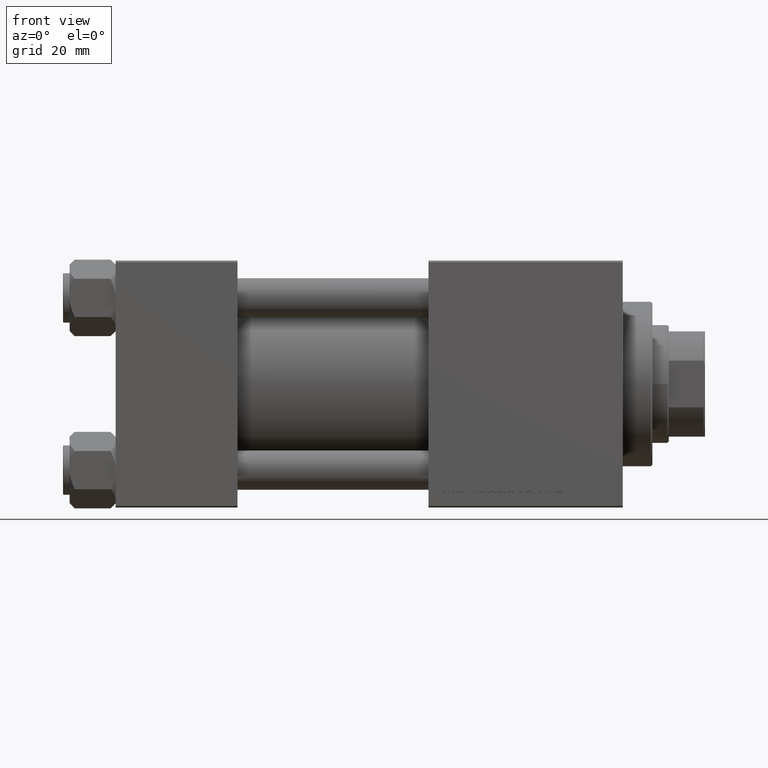
[diagram: clean part render]
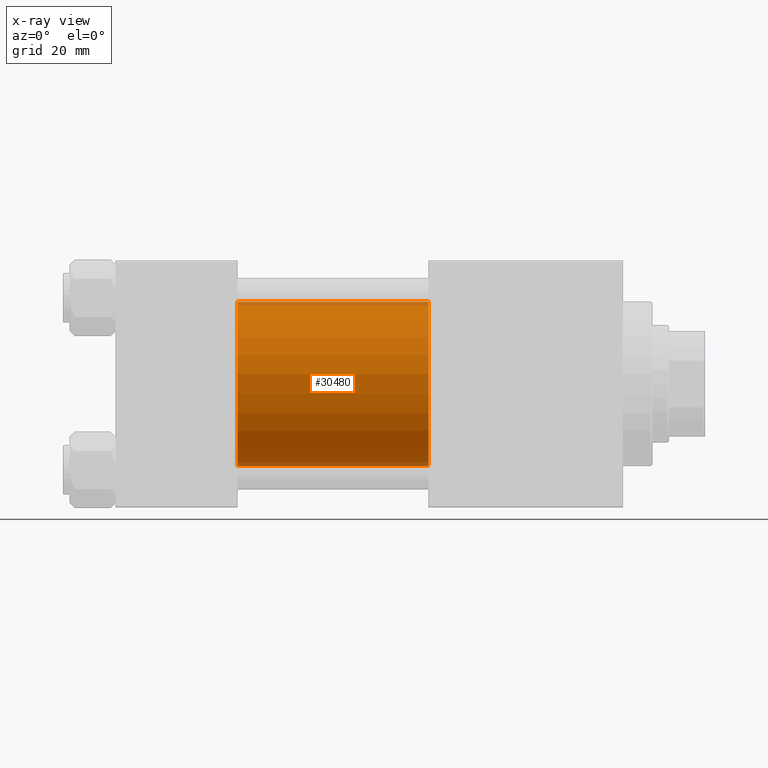
[diagram: x-ray — body ghosted, one internal face saturated and labeled with its STEP entity id]
A machine part, front view, then the same camera in x-ray: the body is ghosted and one INTERNAL B-rep face — a face not visible from any outside direction — is saturated and labeled: STEP entity #30480.
In plain terms, the highlighted cylindrical surface (partial cylindrical patch) has radius 25 mm, axis along (-1, -0, -0).
Its self-contained STEP definition (entity closure, byte-faithful):
#813 = CARTESIAN_POINT ( 'NONE',  ( 95.00000000000000000, -2.602085213965210642E-15, 0.000000000000000000 ) ) ;
#1558 = DIRECTION ( 'NONE',  ( -1.000000000000000000, -0.000000000000000000, -0.000000000000000000 ) ) ;
#1812 = LINE ( 'NONE', #28687, #19314 ) ;
#4354 = EDGE_LOOP ( 'NONE', ( #24250, #27562, #11606, #29359 ) ) ;
#4864 = FACE_OUTER_BOUND ( 'NONE', #4354, .T. ) ;
#5660 = DIRECTION ( 'NONE',  ( 0.000000000000000000, 0.000000000000000000, -1.000000000000000000 ) ) ;
#7914 = DIRECTION ( 'NONE',  ( -1.000000000000000000, -0.000000000000000000, -0.000000000000000000 ) ) ;
#7948 = AXIS2_PLACEMENT_3D ( 'NONE', #813, #7914, #11953 ) ;
#9704 = DIRECTION ( 'NONE',  ( 1.000000000000000000, 0.000000000000000000, 0.000000000000000000 ) ) ;
#10472 = DIRECTION ( 'NONE',  ( -1.000000000000000000, -0.000000000000000000, -0.000000000000000000 ) ) ;
#11606 = ORIENTED_EDGE ( 'NONE', *, *, #27464, .F. ) ;
#11953 = DIRECTION ( 'NONE',  ( 0.000000000000000000, 0.000000000000000000, 1.000000000000000000 ) ) ;
#15947 = AXIS2_PLACEMENT_3D ( 'NONE', #39679, #9704, #5660 ) ;
#17062 = VECTOR ( 'NONE', #10472, 1000.000000000000000 ) ;
#18035 = VERTEX_POINT ( 'NONE', #47099 ) ;
#18096 = CARTESIAN_POINT ( 'NONE',  ( 37.00000000000000000, 4.595317839031718093E-16, -25.00000000000000000 ) ) ;
#19314 = VECTOR ( 'NONE', #1558, 1000.000000000000000 ) ;
#19579 = CYLINDRICAL_SURFACE ( 'NONE', #7948, 25.00000000000000000 ) ;
#20795 = CIRCLE ( 'NONE', #15947, 25.00000000000000000 ) ;
#21313 = CARTESIAN_POINT ( 'NONE',  ( 95.00000000000000000, -2.602085213965210642E-15, 0.000000000000000000 ) ) ;
#22622 = CARTESIAN_POINT ( 'NONE',  ( 95.00000000000000000, 4.595317839031718093E-16, -25.00000000000000000 ) ) ;
#24094 = CIRCLE ( 'NONE', #41921, 25.00000000000000000 ) ;
#24250 = ORIENTED_EDGE ( 'NONE', *, *, #28610, .T. ) ;
#27464 = EDGE_CURVE ( 'NONE', #18035, #41896, #20795, .T. ) ;
#27562 = ORIENTED_EDGE ( 'NONE', *, *, #31872, .T. ) ;
#28610 = EDGE_CURVE ( 'NONE', #40367, #50117, #24094, .T. ) ;
#28687 = CARTESIAN_POINT ( 'NONE',  ( 95.00000000000000000, 4.595317839031718093E-16, -25.00000000000000000 ) ) ;
#29359 = ORIENTED_EDGE ( 'NONE', *, *, #41148, .F. ) ;
#30480 = ADVANCED_FACE ( 'NONE', ( #4864 ), #19579, .F. ) ;
#31872 = EDGE_CURVE ( 'NONE', #50117, #41896, #1812, .T. ) ;
#36806 = DIRECTION ( 'NONE',  ( 1.000000000000000000, 0.000000000000000000, 0.000000000000000000 ) ) ;
#37636 = LINE ( 'NONE', #45270, #17062 ) ;
#39625 = DIRECTION ( 'NONE',  ( 0.000000000000000000, 0.000000000000000000, -1.000000000000000000 ) ) ;
#39679 = CARTESIAN_POINT ( 'NONE',  ( 37.00000000000000000, -2.602085213965210642E-15, 0.000000000000000000 ) ) ;
#40367 = VERTEX_POINT ( 'NONE', #45941 ) ;
#41148 = EDGE_CURVE ( 'NONE', #40367, #18035, #37636, .T. ) ;
#41896 = VERTEX_POINT ( 'NONE', #18096 ) ;
#41921 = AXIS2_PLACEMENT_3D ( 'NONE', #21313, #36806, #39625 ) ;
#45270 = CARTESIAN_POINT ( 'NONE',  ( 95.00000000000000000, -2.602085213965210642E-15, 25.00000000000000000 ) ) ;
#45941 = CARTESIAN_POINT ( 'NONE',  ( 95.00000000000000000, -2.602085213965210642E-15, 25.00000000000000000 ) ) ;
#47099 = CARTESIAN_POINT ( 'NONE',  ( 37.00000000000000000, -2.602085213965210642E-15, 25.00000000000000000 ) ) ;
#50117 = VERTEX_POINT ( 'NONE', #22622 ) ;